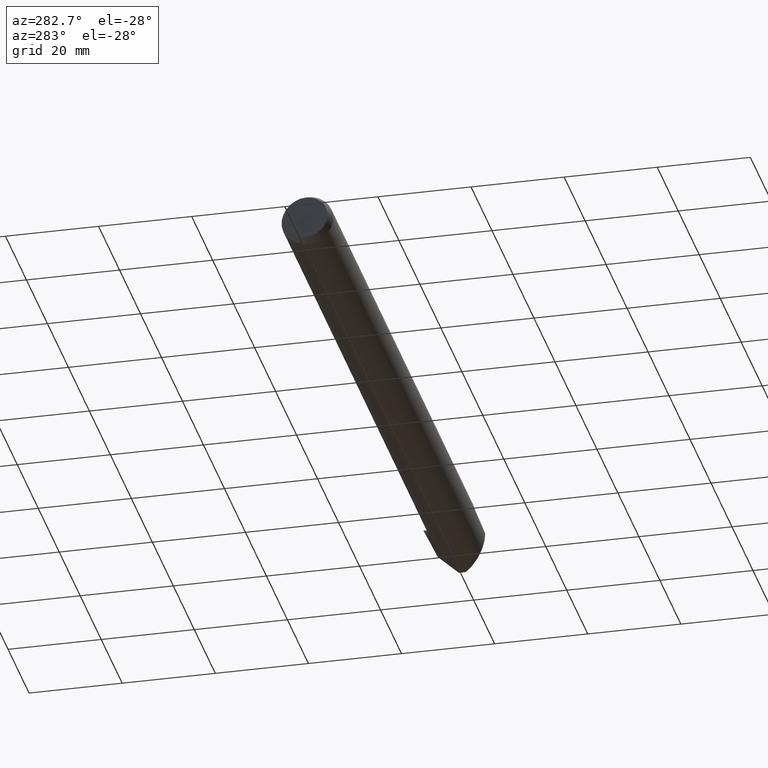
[diagram: clean part render]
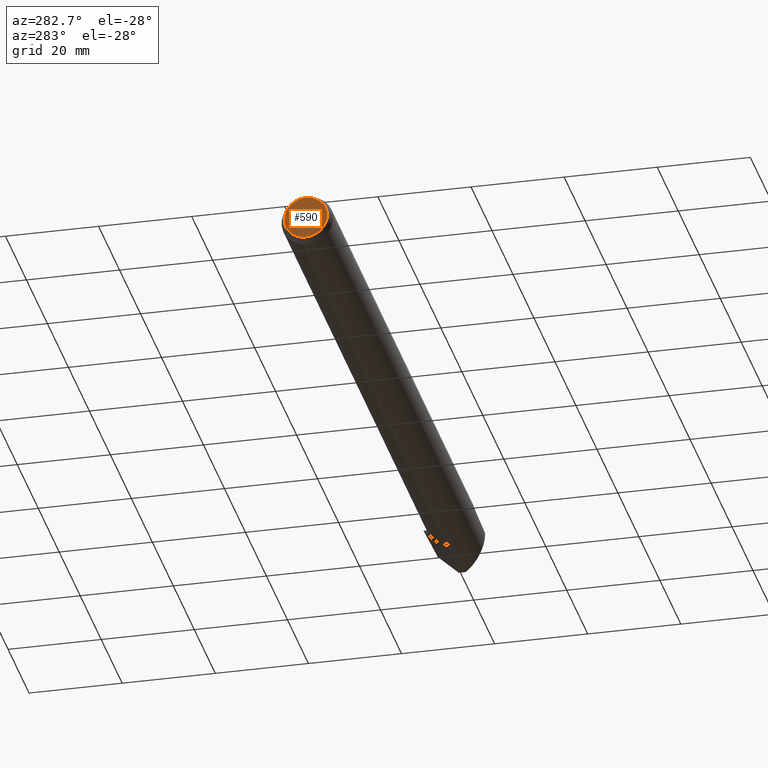
[diagram: same view with one face highlighted and labeled with its STEP entity id]
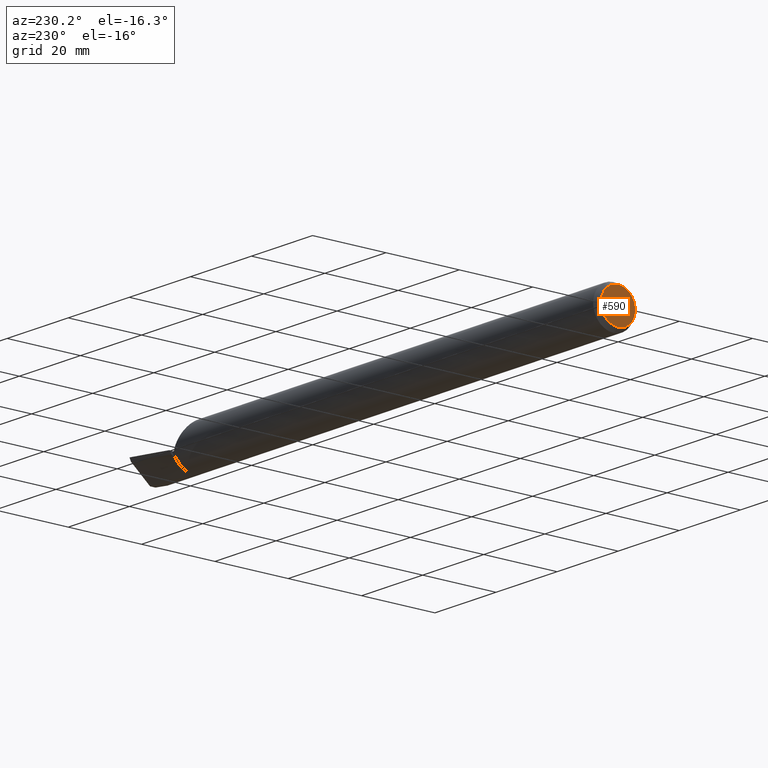
[diagram: same view with one face highlighted and labeled with its STEP entity id]
A machine part, auxiliary view. The second image highlights one B-rep face of the part: STEP entity #590.
A second angle (auxiliary view) of the same face is appended — the face is thin or edge-on in the first view.
In plain terms, the highlighted planar face has unit normal (1, 0, 0).
Its self-contained STEP definition (entity closure, byte-faithful):
#47 = PLANE ( 'NONE',  #537 ) ;
#104 = EDGE_CURVE ( 'NONE', #504, #147, #723, .T. ) ;
#111 = DIRECTION ( 'NONE',  ( 0.000000000000000000, 0.000000000000000000, 1.000000000000000000 ) ) ;
#115 = DIRECTION ( 'NONE',  ( 1.000000000000000000, 0.000000000000000000, 0.000000000000000000 ) ) ;
#147 = VERTEX_POINT ( 'NONE', #247 ) ;
#202 = CARTESIAN_POINT ( 'NONE',  ( 0.000000000000000000, 0.000000000000000000, 0.000000000000000000 ) ) ;
#247 = CARTESIAN_POINT ( 'NONE',  ( 0.000000000000000000, 2.465575178590705122E-17, 0.1840089838486222984 ) ) ;
#272 = DIRECTION ( 'NONE',  ( 0.000000000000000000, 0.000000000000000000, -1.000000000000000000 ) ) ;
#287 = ORIENTED_EDGE ( 'NONE', *, *, #600, .T. ) ;
#304 = CARTESIAN_POINT ( 'NONE',  ( 0.000000000000000000, 0.000000000000000000, 0.000000000000000000 ) ) ;
#318 = CARTESIAN_POINT ( 'NONE',  ( 0.000000000000000000, 0.000000000000000000, 0.000000000000000000 ) ) ;
#366 = DIRECTION ( 'NONE',  ( -1.000000000000000000, -0.000000000000000000, -0.000000000000000000 ) ) ;
#389 = CIRCLE ( 'NONE', #449, 0.1840089838486222984 ) ;
#449 = AXIS2_PLACEMENT_3D ( 'NONE', #202, #735, #111 ) ;
#464 = ORIENTED_EDGE ( 'NONE', *, *, #104, .T. ) ;
#479 = DIRECTION ( 'NONE',  ( 0.000000000000000000, 0.000000000000000000, 1.000000000000000000 ) ) ;
#504 = VERTEX_POINT ( 'NONE', #534 ) ;
#515 = EDGE_LOOP ( 'NONE', ( #464, #287 ) ) ;
#534 = CARTESIAN_POINT ( 'NONE',  ( 0.000000000000000000, 0.000000000000000000, -0.1840089838486222984 ) ) ;
#537 = AXIS2_PLACEMENT_3D ( 'NONE', #318, #115, #272 ) ;
#558 = FACE_OUTER_BOUND ( 'NONE', #515, .T. ) ;
#590 = ADVANCED_FACE ( 'NONE', ( #558 ), #47, .F. ) ;
#600 = EDGE_CURVE ( 'NONE', #147, #504, #389, .T. ) ;
#650 = AXIS2_PLACEMENT_3D ( 'NONE', #304, #366, #479 ) ;
#723 = CIRCLE ( 'NONE', #650, 0.1840089838486222984 ) ;
#735 = DIRECTION ( 'NONE',  ( -1.000000000000000000, -0.000000000000000000, -0.000000000000000000 ) ) ;